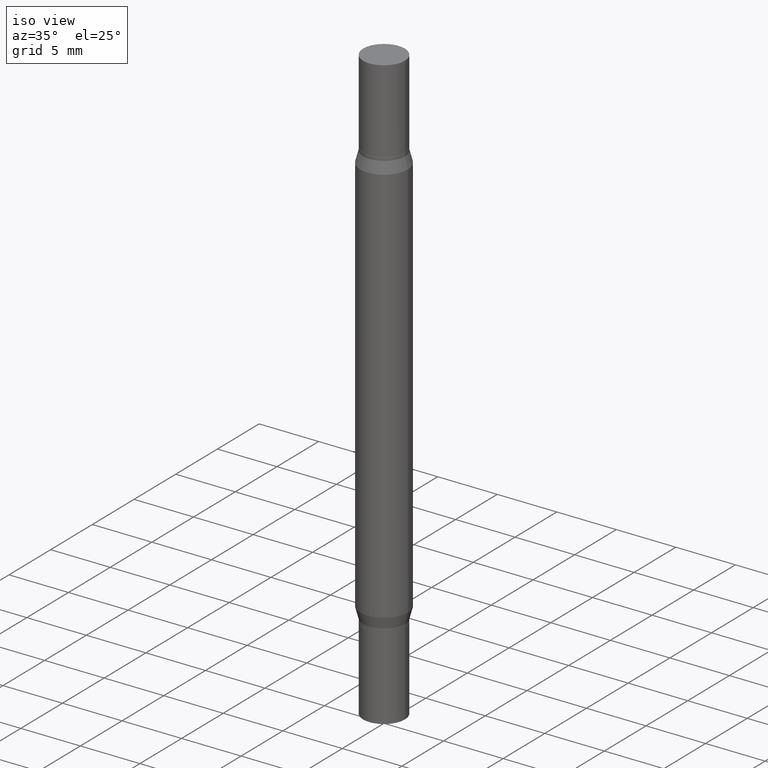
[diagram: clean part render]
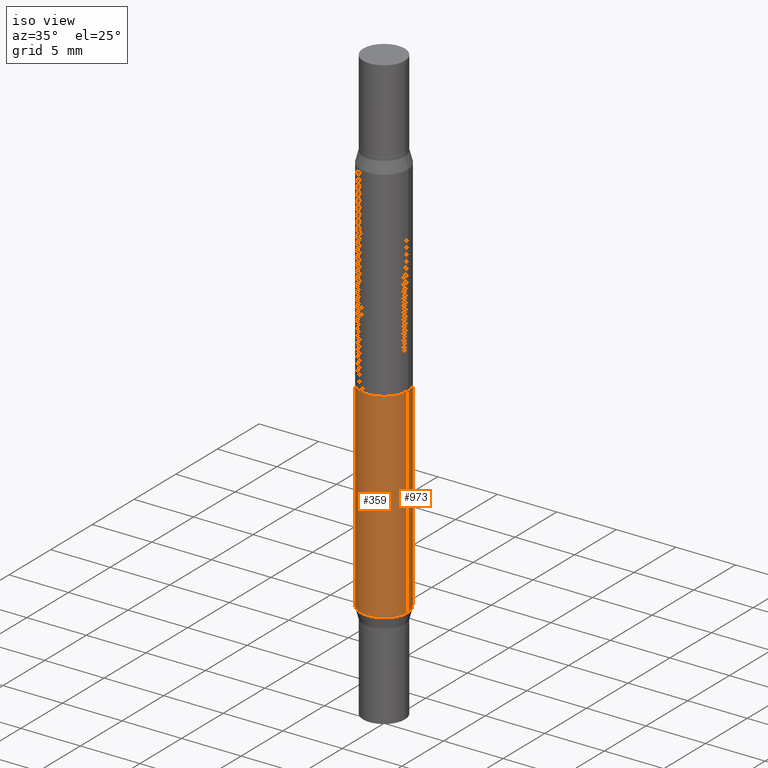
[diagram: same view with one multi-face feature highlighted, each face labeled with its STEP entity id]
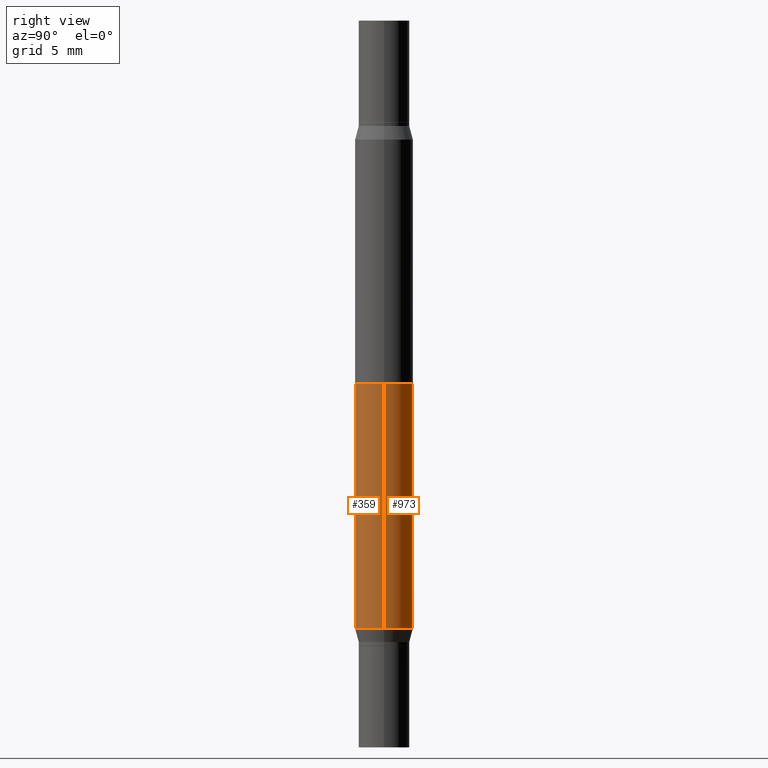
[diagram: same view with one multi-face feature highlighted, each face labeled with its STEP entity id]
A machine part, iso view. The highlighted faces form ONE feature: a constant-radius fillet chain: 2 tangent blend faces with common blend radius 2.0002 mm. The faces share edges in the B-rep.
A second angle (right view) of the same feature is appended — it is thin or edge-on in the first view.
Their STEP definitions:
[1] entity #973 (Cylinder):
#26 = ORIENTED_EDGE ( 'NONE', *, *, #185, .F. ) ;
#54 = AXIS2_PLACEMENT_3D ( 'NONE', #577, #972, #431 ) ;
#66 = VECTOR ( 'NONE', #944, 39.37007874015748143 ) ;
#118 = CARTESIAN_POINT ( 'NONE',  ( 4.025582307673839975E-29, -5.747464645499252384E-15, -1.646139299545446466 ) ) ;
#123 = ORIENTED_EDGE ( 'NONE', *, *, #928, .T. ) ;
#143 = VECTOR ( 'NONE', #553, 39.37007874015748143 ) ;
#162 = VERTEX_POINT ( 'NONE', #946 ) ;
#185 = EDGE_CURVE ( 'NONE', #162, #720, #974, .T. ) ;
#217 = AXIS2_PLACEMENT_3D ( 'NONE', #118, #411, #221 ) ;
#221 = DIRECTION ( 'NONE',  ( 1.000000000000000000, -6.982962677686261977E-15, 0.000000000000000000 ) ) ;
#282 = FACE_OUTER_BOUND ( 'NONE', #457, .T. ) ;
#298 = VERTEX_POINT ( 'NONE', #531 ) ;
#354 = CARTESIAN_POINT ( 'NONE',  ( -0.07875000000000000056, -2.896226290431857964E-15, -1.646139299545446466 ) ) ;
#395 = LINE ( 'NONE', #543, #66 ) ;
#411 = DIRECTION ( 'NONE',  ( -2.445468806185136597E-29, 3.491481338843145583E-15, 1.000000000000000000 ) ) ;
#431 = DIRECTION ( 'NONE',  ( 1.000000000000000000, -6.982962677686261977E-15, 0.000000000000000000 ) ) ;
#457 = EDGE_LOOP ( 'NONE', ( #551, #26, #600, #123 ) ) ;
#476 = LINE ( 'NONE', #686, #143 ) ;
#509 = VERTEX_POINT ( 'NONE', #354 ) ;
#514 = CARTESIAN_POINT ( 'NONE',  ( -0.07875000000000000056, -5.850378619788179676E-16, -0.3223607004545533949 ) ) ;
#518 = CYLINDRICAL_SURFACE ( 'NONE', #54, 0.07875000000000000056 ) ;
#531 = CARTESIAN_POINT ( 'NONE',  ( 0.07875000000000000056, -6.297372956367045729E-15, -1.646139299545446466 ) ) ;
#543 = CARTESIAN_POINT ( 'NONE',  ( -0.07875000000000000056, -6.333035455147343525E-15, -1.968499999999999694 ) ) ;
#551 = ORIENTED_EDGE ( 'NONE', *, *, #552, .F. ) ;
#552 = EDGE_CURVE ( 'NONE', #720, #509, #395, .T. ) ;
#553 = DIRECTION ( 'NONE',  ( -2.445468806185136877E-29, -3.491805094961123683E-15, -1.000000000000000000 ) ) ;
#577 = CARTESIAN_POINT ( 'NONE',  ( 0.000000000000000000, -6.873299672471851415E-15, -1.968499999999999694 ) ) ;
#600 = ORIENTED_EDGE ( 'NONE', *, *, #749, .T. ) ;
#686 = CARTESIAN_POINT ( 'NONE',  ( 0.07875000000000000056, -7.423207983339643972E-15, -1.968499999999999694 ) ) ;
#720 = VERTEX_POINT ( 'NONE', #514 ) ;
#737 = DIRECTION ( 'NONE',  ( 2.445468806185136597E-29, 3.491805094961124077E-15, 1.000000000000000000 ) ) ;
#749 = EDGE_CURVE ( 'NONE', #162, #298, #476, .T. ) ;
#792 = AXIS2_PLACEMENT_3D ( 'NONE', #881, #737, #956 ) ;
#854 = CIRCLE ( 'NONE', #217, 0.07875000000000000056 ) ;
#881 = CARTESIAN_POINT ( 'NONE',  ( 4.025582307673839975E-29, -1.125302079303325561E-15, -0.3223607004545533949 ) ) ;
#928 = EDGE_CURVE ( 'NONE', #298, #509, #854, .T. ) ;
#944 = DIRECTION ( 'NONE',  ( -2.445468806185136877E-29, -3.491805094961123683E-15, -1.000000000000000000 ) ) ;
#946 = CARTESIAN_POINT ( 'NONE',  ( 0.07875000000000000056, -1.675210390171119696E-15, -0.3223607004545533949 ) ) ;
#956 = DIRECTION ( 'NONE',  ( 1.000000000000000000, -6.982962677686268288E-15, 0.000000000000000000 ) ) ;
#972 = DIRECTION ( 'NONE',  ( -2.445468806185136597E-29, -3.491805094961124077E-15, -1.000000000000000000 ) ) ;
#973 = ADVANCED_FACE ( 'NONE', ( #282 ), #518, .T. ) ;
#974 = CIRCLE ( 'NONE', #792, 0.07875000000000000056 ) ;
[2] entity #359 (Cylinder):
#66 = VECTOR ( 'NONE', #944, 39.37007874015748143 ) ;
#73 = AXIS2_PLACEMENT_3D ( 'NONE', #648, #563, #448 ) ;
#91 = DIRECTION ( 'NONE',  ( 1.000000000000000000, -6.982962677686268288E-15, 0.000000000000000000 ) ) ;
#127 = CIRCLE ( 'NONE', #164, 0.07875000000000000056 ) ;
#143 = VECTOR ( 'NONE', #553, 39.37007874015748143 ) ;
#147 = EDGE_CURVE ( 'NONE', #720, #162, #127, .T. ) ;
#162 = VERTEX_POINT ( 'NONE', #946 ) ;
#164 = AXIS2_PLACEMENT_3D ( 'NONE', #466, #870, #91 ) ;
#176 = ORIENTED_EDGE ( 'NONE', *, *, #147, .F. ) ;
#187 = CYLINDRICAL_SURFACE ( 'NONE', #73, 0.07875000000000000056 ) ;
#214 = DIRECTION ( 'NONE',  ( -2.445468806185136597E-29, 3.491481338843145583E-15, 1.000000000000000000 ) ) ;
#260 = ORIENTED_EDGE ( 'NONE', *, *, #552, .T. ) ;
#275 = EDGE_LOOP ( 'NONE', ( #176, #260, #733, #622 ) ) ;
#293 = CARTESIAN_POINT ( 'NONE',  ( 4.025582307673839975E-29, -5.747464645499252384E-15, -1.646139299545446466 ) ) ;
#298 = VERTEX_POINT ( 'NONE', #531 ) ;
#332 = FACE_OUTER_BOUND ( 'NONE', #275, .T. ) ;
#354 = CARTESIAN_POINT ( 'NONE',  ( -0.07875000000000000056, -2.896226290431857964E-15, -1.646139299545446466 ) ) ;
#359 = ADVANCED_FACE ( 'NONE', ( #332 ), #187, .T. ) ;
#395 = LINE ( 'NONE', #543, #66 ) ;
#403 = EDGE_CURVE ( 'NONE', #509, #298, #579, .T. ) ;
#448 = DIRECTION ( 'NONE',  ( 1.000000000000000000, -6.982962677686261977E-15, 0.000000000000000000 ) ) ;
#466 = CARTESIAN_POINT ( 'NONE',  ( 4.025582307673839975E-29, -1.125302079303325561E-15, -0.3223607004545533949 ) ) ;
#476 = LINE ( 'NONE', #686, #143 ) ;
#509 = VERTEX_POINT ( 'NONE', #354 ) ;
#514 = CARTESIAN_POINT ( 'NONE',  ( -0.07875000000000000056, -5.850378619788179676E-16, -0.3223607004545533949 ) ) ;
#531 = CARTESIAN_POINT ( 'NONE',  ( 0.07875000000000000056, -6.297372956367045729E-15, -1.646139299545446466 ) ) ;
#543 = CARTESIAN_POINT ( 'NONE',  ( -0.07875000000000000056, -6.333035455147343525E-15, -1.968499999999999694 ) ) ;
#552 = EDGE_CURVE ( 'NONE', #720, #509, #395, .T. ) ;
#553 = DIRECTION ( 'NONE',  ( -2.445468806185136877E-29, -3.491805094961123683E-15, -1.000000000000000000 ) ) ;
#563 = DIRECTION ( 'NONE',  ( -2.445468806185136597E-29, -3.491805094961124077E-15, -1.000000000000000000 ) ) ;
#579 = CIRCLE ( 'NONE', #711, 0.07875000000000000056 ) ;
#585 = DIRECTION ( 'NONE',  ( 1.000000000000000000, -6.982962677686261977E-15, 0.000000000000000000 ) ) ;
#622 = ORIENTED_EDGE ( 'NONE', *, *, #749, .F. ) ;
#648 = CARTESIAN_POINT ( 'NONE',  ( 0.000000000000000000, -6.873299672471851415E-15, -1.968499999999999694 ) ) ;
#686 = CARTESIAN_POINT ( 'NONE',  ( 0.07875000000000000056, -7.423207983339643972E-15, -1.968499999999999694 ) ) ;
#711 = AXIS2_PLACEMENT_3D ( 'NONE', #293, #214, #585 ) ;
#720 = VERTEX_POINT ( 'NONE', #514 ) ;
#733 = ORIENTED_EDGE ( 'NONE', *, *, #403, .T. ) ;
#749 = EDGE_CURVE ( 'NONE', #162, #298, #476, .T. ) ;
#870 = DIRECTION ( 'NONE',  ( 2.445468806185136597E-29, 3.491805094961124077E-15, 1.000000000000000000 ) ) ;
#944 = DIRECTION ( 'NONE',  ( -2.445468806185136877E-29, -3.491805094961123683E-15, -1.000000000000000000 ) ) ;
#946 = CARTESIAN_POINT ( 'NONE',  ( 0.07875000000000000056, -1.675210390171119696E-15, -0.3223607004545533949 ) ) ;